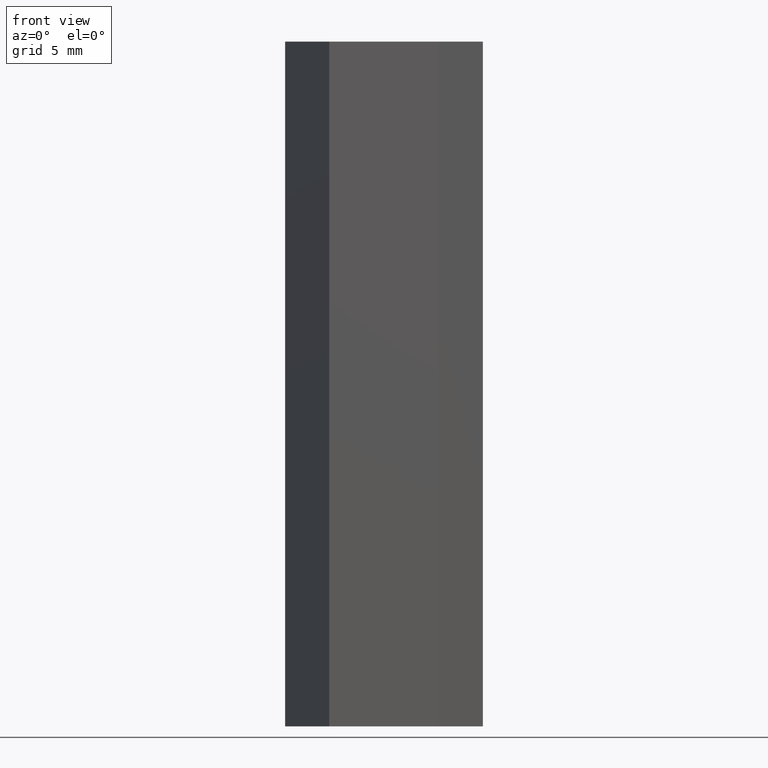
[diagram: clean part render]
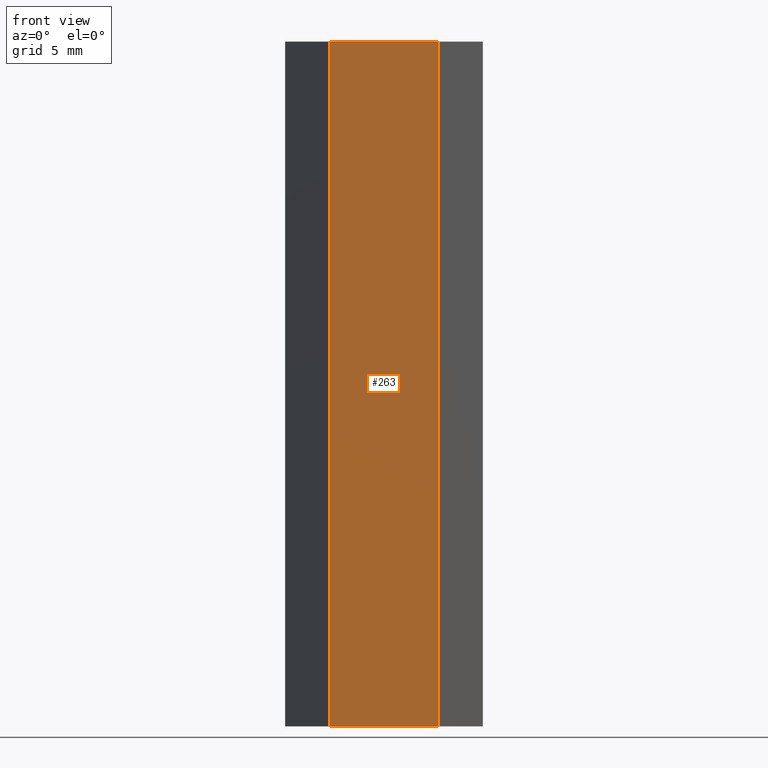
[diagram: same view with one face highlighted and labeled with its STEP entity id]
A machine part, front view. The second image highlights one B-rep face of the part: STEP entity #263.
In plain terms, the highlighted planar face has unit normal (0, 1, -0).
Its self-contained STEP definition (entity closure, byte-faithful):
#1 = EDGE_CURVE ( 'NONE', #43, #45, #317, .T. ) ;
#3 = EDGE_CURVE ( 'NONE', #45, #29, #321, .T. ) ;
#5 = EDGE_CURVE ( 'NONE', #43, #30, #50, .T. ) ;
#7 = EDGE_CURVE ( 'NONE', #30, #29, #54, .T. ) ;
#29 = VERTEX_POINT ( 'NONE', #150 ) ;
#30 = VERTEX_POINT ( 'NONE', #151 ) ;
#31 = CARTESIAN_POINT ( 'NONE',  ( 8.000000000000000000, -2.195599280053263200E-015, 0.0000000000000000000 ) ) ;
#32 = DIRECTION ( 'NONE',  ( 1.000000000000000000, -2.744499100066579100E-016, -0.0000000000000000000 ) ) ;
#38 = CARTESIAN_POINT ( 'NONE',  ( 0.0000000000000000000, 0.0000000000000000000, 50.00000000000000000 ) ) ;
#39 = DIRECTION ( 'NONE',  ( -0.0000000000000000000, -0.0000000000000000000, -1.000000000000000000 ) ) ;
#43 = VERTEX_POINT ( 'NONE', #138 ) ;
#45 = VERTEX_POINT ( 'NONE', #136 ) ;
#47 = VECTOR ( 'NONE', #32, 1000.000000000000000 ) ;
#50 = LINE ( 'NONE', #144, #51 ) ;
#51 = VECTOR ( 'NONE', #145, 1000.000000000000000 ) ;
#54 = LINE ( 'NONE', #156, #55 ) ;
#55 = VECTOR ( 'NONE', #132, 1000.000000000000000 ) ;
#57 = FACE_OUTER_BOUND ( 'NONE', #181, .T. ) ;
#127 = DIRECTION ( 'NONE',  ( -1.000000000000000000, 2.744499100066579100E-016, 0.0000000000000000000 ) ) ;
#132 = DIRECTION ( 'NONE',  ( -0.0000000000000000000, -0.0000000000000000000, -1.000000000000000000 ) ) ;
#136 = CARTESIAN_POINT ( 'NONE',  ( 0.0000000000000000000, 0.0000000000000000000, 0.0000000000000000000 ) ) ;
#138 = CARTESIAN_POINT ( 'NONE',  ( 0.0000000000000000000, 0.0000000000000000000, 50.00000000000000000 ) ) ;
#141 = PLANE ( 'NONE',  #366 ) ;
#144 = CARTESIAN_POINT ( 'NONE',  ( 8.000000000000000000, -2.195599280053263200E-015, 50.00000000000000000 ) ) ;
#145 = DIRECTION ( 'NONE',  ( 1.000000000000000000, -2.744499100066579100E-016, -0.0000000000000000000 ) ) ;
#147 = CARTESIAN_POINT ( 'NONE',  ( 8.000000000000000000, -2.195599280053263200E-015, 50.00000000000000000 ) ) ;
#150 = CARTESIAN_POINT ( 'NONE',  ( 8.000000000000000000, -2.195599280053263200E-015, 0.0000000000000000000 ) ) ;
#151 = CARTESIAN_POINT ( 'NONE',  ( 8.000000000000000000, -2.195599280053263200E-015, 50.00000000000000000 ) ) ;
#154 = DIRECTION ( 'NONE',  ( 2.744499100066579100E-016, 1.000000000000000000, -0.0000000000000000000 ) ) ;
#156 = CARTESIAN_POINT ( 'NONE',  ( 8.000000000000000000, -2.195599280053263200E-015, 50.00000000000000000 ) ) ;
#181 = EDGE_LOOP ( 'NONE', ( #314, #291, #312, #313 ) ) ;
#263 = ADVANCED_FACE ( 'NONE', ( #57 ), #141, .F. ) ;
#291 = ORIENTED_EDGE ( 'NONE', *, *, #7, .F. ) ;
#312 = ORIENTED_EDGE ( 'NONE', *, *, #5, .F. ) ;
#313 = ORIENTED_EDGE ( 'NONE', *, *, #1, .T. ) ;
#314 = ORIENTED_EDGE ( 'NONE', *, *, #3, .T. ) ;
#317 = LINE ( 'NONE', #38, #318 ) ;
#318 = VECTOR ( 'NONE', #39, 1000.000000000000000 ) ;
#321 = LINE ( 'NONE', #31, #47 ) ;
#366 = AXIS2_PLACEMENT_3D ( 'NONE', #147, #154, #127 ) ;